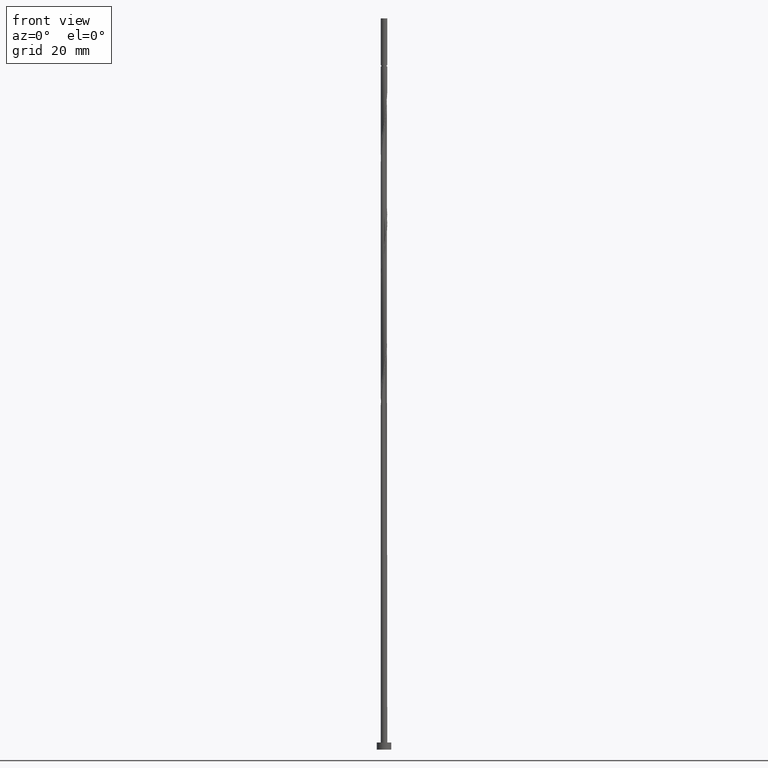
[diagram: clean part render]
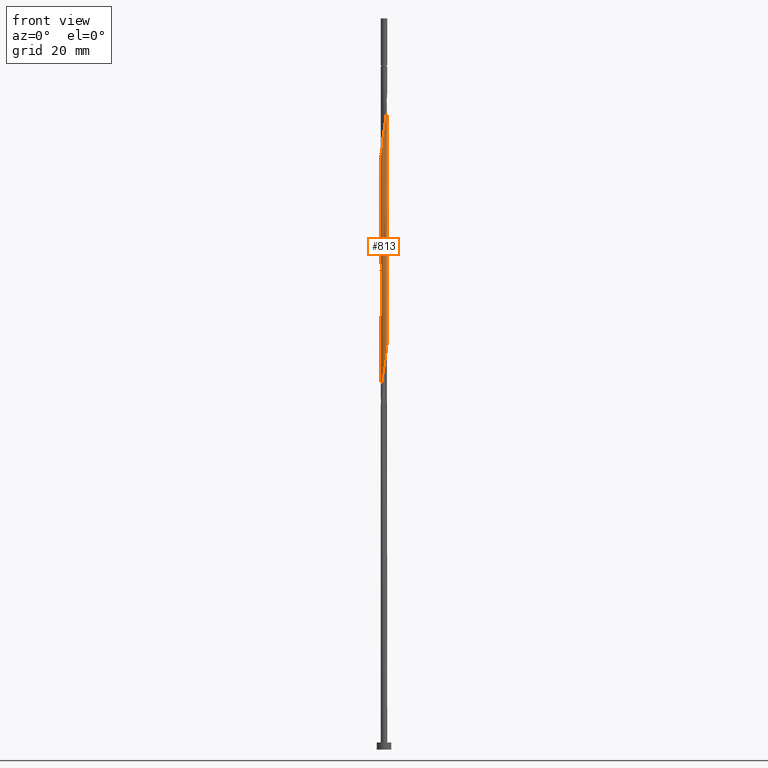
[diagram: same view with one face highlighted and labeled with its STEP entity id]
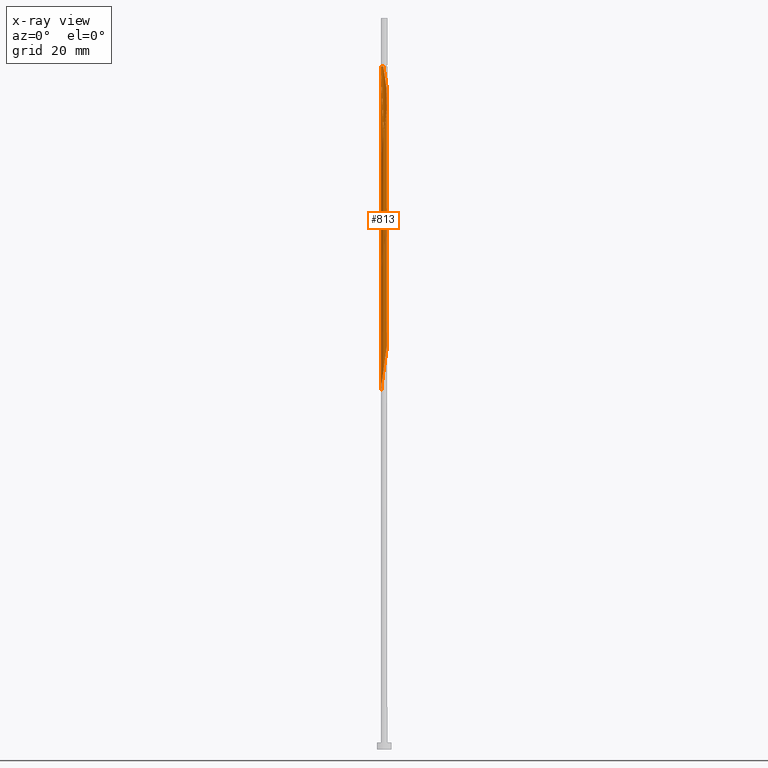
[diagram: x-ray of the same camera — body ghosted, the highlighted face saturated]
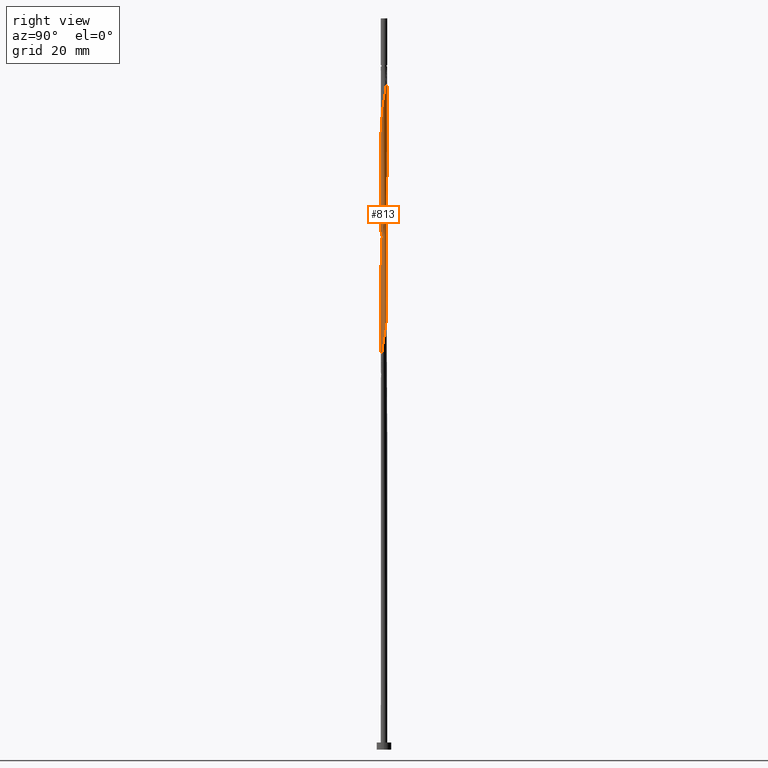
[diagram: same view with one face highlighted and labeled with its STEP entity id]
A machine part, front view. The second image highlights one B-rep face of the part: STEP entity #813.
The next image is the same camera in x-ray: the body ghosted, the highlighted face saturated — about 0% of this face is hidden behind the body in this view.
A second angle (right view) of the same face is appended — the face is thin or edge-on in the first view.
In plain terms, the highlighted cylindrical surface (bore or boss wall) has radius 0.55 mm, axis along (-0, -0, -1).
Its self-contained STEP definition (entity closure, byte-faithful):
#3 = CARTESIAN_POINT ( 'NONE',  ( -0.5464409452811958001, -0.06246833854196941899, 81.36855586856225386 ) ) ;
#9 = CARTESIAN_POINT ( 'NONE',  ( -0.5563349581191694426, 0.02407940474680335743, 80.84772253522896790 ) ) ;
#12 = CARTESIAN_POINT ( 'NONE',  ( 0.3717278763758661841, 0.4053620430246150375, 113.6602225352289679 ) ) ;
#14 = ORIENTED_EDGE ( 'NONE', *, *, #144, .T. ) ;
#16 = CARTESIAN_POINT ( 'NONE',  ( 0.1490160818307421919, -0.5365469324432223797, 66.26438920189562509 ) ) ;
#20 = EDGE_CURVE ( 'NONE', #357, #259, #975, .T. ) ;
#48 = CARTESIAN_POINT ( 'NONE',  ( -0.1094486180817280940, 0.5389999999999980362, 116.7852225352289111 ) ) ;
#54 = CARTESIAN_POINT ( 'NONE',  ( 0.5500000000000010436, -0.05527707983925730234, 91.07405373462472653 ) ) ;
#68 = CARTESIAN_POINT ( 'NONE',  ( -0.5500000000000008216, -0.03133555559553766884, 60.34786939923979787 ) ) ;
#76 = EDGE_LOOP ( 'NONE', ( #155, #396, #227, #14, #501, #451, #1160, #553 ) ) ;
#77 = EDGE_CURVE ( 'NONE', #357, #253, #307, .T. ) ;
#93 = CARTESIAN_POINT ( 'NONE',  ( 0.5500000000000000444, 6.735557395310442516E-17, 125.0000000000000000 ) ) ;
#101 = CARTESIAN_POINT ( 'NONE',  ( -0.5500000000000008216, 3.260999855347195201E-16, 100.4954200937586677 ) ) ;
#104 = CARTESIAN_POINT ( 'NONE',  ( 0.3075248360626017807, -0.4642379546774351162, 67.30605586856228228 ) ) ;
#106 = CARTESIAN_POINT ( 'NONE',  ( 0.5464409452811958001, 0.06246833854196934266, 70.95188920189558246 ) ) ;
#116 = CARTESIAN_POINT ( 'NONE',  ( -0.5216650418808324030, 0.1948178314166537639, 79.80605586856226807 ) ) ;
#118 = CARTESIAN_POINT ( 'NONE',  ( 0.5216650418808322920, 0.1948178314166536251, 112.0977225352289395 ) ) ;
#144 = EDGE_CURVE ( 'NONE', #1031, #1375, #953, .T. ) ;
#155 = ORIENTED_EDGE ( 'NONE', *, *, #77, .F. ) ;
#187 = CARTESIAN_POINT ( 'NONE',  ( -0.5500000000000008216, 3.260999855347195201E-16, 100.4954200937586677 ) ) ;
#193 = CARTESIAN_POINT ( 'NONE',  ( -0.1490160818307422474, -0.5365469324432222686, 104.8060558685622681 ) ) ;
#200 = CARTESIAN_POINT ( 'NONE',  ( -0.3717278763758661286, -0.4053620430246150930, 103.2435558685622823 ) ) ;
#208 = CARTESIAN_POINT ( 'NONE',  ( 0.4053620430246150930, -0.3717278763758661286, 108.4518892018956251 ) ) ;
#217 = CARTESIAN_POINT ( 'NONE',  ( -0.4642379546774351162, -0.3075248360626017807, 82.93105586856229650 ) ) ;
#219 = CARTESIAN_POINT ( 'NONE',  ( 0.4359309166891303655, 0.3464861313717949587, 113.1393892018956109 ) ) ;
#224 = CARTESIAN_POINT ( 'NONE',  ( 0.4053620430246151485, 0.3717278763758660731, 73.03522253522893948 ) ) ;
#227 = ORIENTED_EDGE ( 'NONE', *, *, #1104, .F. ) ;
#232 = CARTESIAN_POINT ( 'NONE',  ( 0.02407940474680333315, 0.5563349581191694426, 75.63938920189563930 ) ) ;
#253 = VERTEX_POINT ( 'NONE', #1369 ) ;
#259 = VERTEX_POINT ( 'NONE', #48 ) ;
#265 = AXIS2_PLACEMENT_3D ( 'NONE', #991, #1193, #749 ) ;
#269 =( BOUNDED_CURVE ( )  B_SPLINE_CURVE ( 2, ( #536, #984, #873, #511, #745, #899, #1002, #1011, #1129, #352, #1421, #1205, #290, #730, #624, #1067, #410, #740, #1074, #859, #962, #636, #682 ),
 .UNSPECIFIED., .F., .T. ) 
 B_SPLINE_CURVE_WITH_KNOTS ( ( 3, 2, 2, 2, 2, 2, 2, 2, 2, 2, 2, 3 ),
 ( 0.4295322023138551382, 0.4375000000000000000, 0.4500000000000000111, 0.4625000000000000222, 0.4749999999999999778, 0.4874999999999999889, 0.5000000000000000000, 0.5124999999999999556, 0.5250000000000000222, 0.5374999999999999778, 0.5500000000000000444, 0.5545322023138552492 ),
 .UNSPECIFIED. ) 
 CURVE ( )  GEOMETRIC_REPRESENTATION_ITEM ( )  RATIONAL_B_SPLINE_CURVE ( ( 0.9039174447099540544, 0.9019565955404832414, 0.9090909090909319312, 0.8978984914501476622, 0.9090909090909319312, 0.8978984914501476622, 0.9090909090909319312, 0.8978984914501476622, 0.9090909090909319312, 0.8978984914501476622, 0.9090909090909319312, 0.8978984914501476622, 0.9090909090909319312, 0.8978984914501476622, 0.9090909090909319312, 0.8978984914501476622, 0.9090909090909319312, 0.8978984914501476622, 0.9090909090909319312, 0.8978984914501476622, 0.9090909090909319312, 0.9050328050005962410, 0.9039174447099540544 ) ) 
 REPRESENTATION_ITEM ( '' )  );
#275 = AXIS2_PLACEMENT_3D ( 'NONE', #1319, #1302, #1095 ) ;
#286 = DIRECTION ( 'NONE',  ( -0.000000000000000000, -0.000000000000000000, -1.000000000000000000 ) ) ;
#289 = CARTESIAN_POINT ( 'NONE',  ( -0.4053620430246150375, -0.3717278763758660731, 62.61855586856226807 ) ) ;
#290 = CARTESIAN_POINT ( 'NONE',  ( 0.1094486180817286491, 0.5390000000000009228, 95.95188920189559667 ) ) ;
#295 = CARTESIAN_POINT ( 'NONE',  ( -0.5365469324432223797, -0.1490160818307422752, 61.05605586856228228 ) ) ;
#301 = FACE_OUTER_BOUND ( 'NONE', #76, .T. ) ;
#307 = LINE ( 'NONE', #534, #1098 ) ;
#314 = CARTESIAN_POINT ( 'NONE',  ( -0.3075248360626017252, -0.4642379546774349497, 103.7643892018956251 ) ) ;
#321 = CARTESIAN_POINT ( 'NONE',  ( -0.4787979792849813565, -0.2706519813942244168, 102.2018892018956251 ) ) ;
#328 = CARTESIAN_POINT ( 'NONE',  ( 0.2706519813942245278, 0.4787979792849813010, 74.07688920189561088 ) ) ;
#330 = CARTESIAN_POINT ( 'NONE',  ( 0.4787979792849813565, 0.2706519813942243613, 112.6185558685622681 ) ) ;
#341 = CARTESIAN_POINT ( 'NONE',  ( 0.5216650418808322920, -0.1948178314166537917, 69.38938920189561088 ) ) ;
#345 = CARTESIAN_POINT ( 'NONE',  ( -0.1094486180817285798, -0.5390000000000009228, 64.70188920189559667 ) ) ;
#347 = CARTESIAN_POINT ( 'NONE',  ( -0.1490160818307422752, 0.5365469324432223797, 76.68105586856228228 ) ) ;
#352 = CARTESIAN_POINT ( 'NONE',  ( -0.1490160818307422752, 0.5365469324432223797, 97.51438920189561088 ) ) ;
#357 = VERTEX_POINT ( 'NONE', #700 ) ;
#396 = ORIENTED_EDGE ( 'NONE', *, *, #20, .T. ) ;
#404 =( BOUNDED_CURVE ( )  B_SPLINE_CURVE ( 2, ( #510, #54, #1405, #428, #657, #531, #867, #1317, #1108, #549, #995, #1448, #1347, #564, #671, #665, #1244, #217, #678, #1123, #3, #9, #455, #116, #1131, #1013, #900, #1117, #557, #347, #788, #232, #1330, #881, #328, #776, #224, #1005, #1339, #1228, #106, #445, #891, #341, #783, #1238, #1010, #104, #1360, #16, #584, #555, #345, #1001, #795, #1454, #289, #766, #1419, #295, #759, #68, #1188 ),
 .UNSPECIFIED., .F., .T. ) 
 B_SPLINE_CURVE_WITH_KNOTS ( ( 3, 2, 2, 2, 2, 2, 2, 2, 2, 2, 2, 2, 2, 2, 2, 2, 2, 2, 2, 2, 2, 2, 2, 2, 2, 2, 2, 2, 2, 2, 2, 3 ),
 ( 0.5545322023138552492, 0.5625000000000000000, 0.5749999999999999556, 0.5875000000000000222, 0.5999999999999999778, 0.6125000000000000444, 0.6250000000000000000, 0.6374999999999999556, 0.6500000000000000222, 0.6624999999999999778, 0.6750000000000000444, 0.6875000000000000000, 0.6999999999999999556, 0.7125000000000000222, 0.7249999999999999778, 0.7375000000000000444, 0.7500000000000000000, 0.7624999999999999556, 0.7750000000000000222, 0.7874999999999999778, 0.8000000000000000444, 0.8125000000000000000, 0.8249999999999999556, 0.8375000000000000222, 0.8499999999999999778, 0.8625000000000000444, 0.8750000000000000000, 0.8874999999999999556, 0.8999999999999999112, 0.9125000000000000888, 0.9250000000000000444, 0.9295322023138552492 ),
 .UNSPECIFIED. ) 
 CURVE ( )  GEOMETRIC_REPRESENTATION_ITEM ( )  RATIONAL_B_SPLINE_CURVE ( ( 0.9039174447099540544, 0.9019565955404833524, 0.9090909090909319312, 0.8978984914501476622, 0.9090909090909319312, 0.8978984914501476622, 0.9090909090909319312, 0.8978984914501476622, 0.9090909090909319312, 0.8978984914501476622, 0.9090909090909319312, 0.8978984914501476622, 0.9090909090909319312, 0.8978984914501476622, 0.9090909090909319312, 0.8978984914501476622, 0.9090909090909319312, 0.8978984914501476622, 0.9090909090909319312, 0.8978984914501476622, 0.9090909090909319312, 0.8978984914501476622, 0.9090909090909319312, 0.8978984914501476622, 0.9090909090909319312, 0.8978984914501476622, 0.9090909090909319312, 0.8978984914501476622, 0.9090909090909319312, 0.8978984914501476622, 0.9090909090909319312, 0.8978984914501476622, 0.9090909090909319312, 0.8978984914501476622, 0.9090909090909319312, 0.8978984914501476622, 0.9090909090909319312, 0.8978984914501476622, 0.9090909090909319312, 0.8978984914501476622, 0.9090909090909319312, 0.8978984914501476622, 0.9090909090909319312, 0.8978984914501476622, 0.9090909090909319312, 0.8978984914501476622, 0.9090909090909319312, 0.8978984914501476622, 0.9090909090909319312, 0.8978984914501476622, 0.9090909090909319312, 0.8978984914501476622, 0.9090909090909319312, 0.8978984914501476622, 0.9090909090909319312, 0.8978984914501476622, 0.9090909090909319312, 0.8978984914501476622, 0.9090909090909319312, 0.8978984914501476622, 0.9090909090909319312, 0.9050328050005962410, 0.9039174447099540544 ) ) 
 REPRESENTATION_ITEM ( '' )  );
#410 = CARTESIAN_POINT ( 'NONE',  ( 0.4053620430246151485, 0.3717278763758660731, 93.86855586856226807 ) ) ;
#428 = CARTESIAN_POINT ( 'NONE',  ( 0.5216650418808322920, -0.1948178314166537917, 90.22272253522891106 ) ) ;
#430 = CARTESIAN_POINT ( 'NONE',  ( 0.5365469324432222686, -0.1490160818307423030, 110.0143892018956251 ) ) ;
#440 = CARTESIAN_POINT ( 'NONE',  ( 0.02407940474680323947, -0.5563349581191692206, 105.8477225352289395 ) ) ;
#445 = CARTESIAN_POINT ( 'NONE',  ( 0.5563349581191694426, -0.02407940474680343723, 70.43105586856226807 ) ) ;
#451 = ORIENTED_EDGE ( 'NONE', *, *, #690, .F. ) ;
#455 = CARTESIAN_POINT ( 'NONE',  ( -0.5390000000000009228, 0.1094486180817285242, 80.32688920189558246 ) ) ;
#464 = VECTOR ( 'NONE', #286, 1000.000000000000000 ) ;
#501 = ORIENTED_EDGE ( 'NONE', *, *, #664, .F. ) ;
#510 = CARTESIAN_POINT ( 'NONE',  ( 0.5500000000000008216, 6.971792794190551721E-16, 91.40835831003256828 ) ) ;
#511 = CARTESIAN_POINT ( 'NONE',  ( -0.5216650418808324030, 0.1948178314166537639, 100.6393892018956109 ) ) ;
#512 =( BOUNDED_CURVE ( )  B_SPLINE_CURVE ( 2, ( #101, #542, #566, #1094, #321, #551, #200, #314, #785, #193, #1231, #440, #980, #883, #989, #1240, #208, #673, #1332, #430, #1342, #1349, #1212, #118, #330, #219, #12, #1325, #644, #771, #1202, #666, #1433 ),
 .UNSPECIFIED., .F., .T. ) 
 B_SPLINE_CURVE_WITH_KNOTS ( ( 3, 2, 2, 2, 2, 2, 2, 2, 2, 2, 2, 2, 2, 2, 2, 2, 3 ),
 ( 0.5545322023138550271, 0.5625000000000000000, 0.5749999999999999556, 0.5875000000000001332, 0.6000000000000000888, 0.6125000000000001554, 0.6250000000000001110, 0.6375000000000000666, 0.6500000000000001332, 0.6625000000000001998, 0.6750000000000002665, 0.6875000000000002220, 0.7000000000000001776, 0.7125000000000003553, 0.7250000000000003109, 0.7375000000000003775, 0.7500000000000003331 ),
 .UNSPECIFIED. ) 
 CURVE ( )  GEOMETRIC_REPRESENTATION_ITEM ( )  RATIONAL_B_SPLINE_CURVE ( ( 0.9039174447099536103, 0.9019565955404825752, 0.9090909090909312651, 0.8978984914501472181, 0.9090909090909312651, 0.8978984914501472181, 0.9090909090909312651, 0.8978984914501472181, 0.9090909090909312651, 0.8978984914501472181, 0.9090909090909312651, 0.8978984914501472181, 0.9090909090909312651, 0.8978984914501472181, 0.9090909090909312651, 0.8978984914501472181, 0.9090909090909312651, 0.8978984914501472181, 0.9090909090909312651, 0.8978984914501472181, 0.9090909090909312651, 0.8978984914501472181, 0.9090909090909312651, 0.8978984914501472181, 0.9090909090909312651, 0.8978984914501472181, 0.9090909090909312651, 0.8978984914501472181, 0.9090909090909312651, 0.8978984914501472181, 0.9090909090909312651, 0.8978984914501468850, 0.9090909090909315982 ) ) 
 REPRESENTATION_ITEM ( '' )  );
#526 = DIRECTION ( 'NONE',  ( -0.000000000000000000, -0.000000000000000000, -1.000000000000000000 ) ) ;
#531 = CARTESIAN_POINT ( 'NONE',  ( 0.4359309166891303100, -0.3464861313717951807, 89.18105586856226807 ) ) ;
#534 = CARTESIAN_POINT ( 'NONE',  ( -0.5500000000000000444, 0.000000000000000000, 125.0000000000000000 ) ) ;
#536 = CARTESIAN_POINT ( 'NONE',  ( -0.5500000000000009326, -2.811206771851028951E-16, 101.8250249766992255 ) ) ;
#540 = CARTESIAN_POINT ( 'NONE',  ( 0.5500000000000000444, 6.735557395310442516E-17, 116.7852225352289395 ) ) ;
#542 = CARTESIAN_POINT ( 'NONE',  ( -0.5500000000000008216, -0.05527707983925565088, 100.8297246691665094 ) ) ;
#549 = CARTESIAN_POINT ( 'NONE',  ( 0.1490160818307421919, -0.5365469324432223797, 87.09772253522892527 ) ) ;
#551 = CARTESIAN_POINT ( 'NONE',  ( -0.4359309166891302545, -0.3464861313717949587, 102.7227225352289679 ) ) ;
#553 = ORIENTED_EDGE ( 'NONE', *, *, #1335, .F. ) ;
#555 = CARTESIAN_POINT ( 'NONE',  ( -0.02407940474680341295, -0.5563349581191694426, 65.22272253522893948 ) ) ;
#557 = CARTESIAN_POINT ( 'NONE',  ( -0.2282704589466720557, 0.5003924435603286369, 77.20188920189559667 ) ) ;
#564 = CARTESIAN_POINT ( 'NONE',  ( -0.1948178314166537639, -0.5216650418808322920, 85.01438920189563930 ) ) ;
#566 = CARTESIAN_POINT ( 'NONE',  ( -0.5390000000000009228, -0.1094486180817284965, 101.1602225352289679 ) ) ;
#584 = CARTESIAN_POINT ( 'NONE',  ( 0.06246833854196937041, -0.5464409452811958001, 65.74355586856226807 ) ) ;
#611 = CARTESIAN_POINT ( 'NONE',  ( 0.5500000000000008216, 6.971792794190551721E-16, 91.40835831003256828 ) ) ;
#624 = CARTESIAN_POINT ( 'NONE',  ( 0.2706519813942245278, 0.4787979792849813010, 94.91022253522892527 ) ) ;
#636 = CARTESIAN_POINT ( 'NONE',  ( 0.5500000000000008216, 0.03133555559553759945, 91.59786939923982629 ) ) ;
#644 = CARTESIAN_POINT ( 'NONE',  ( 0.2282704589466721390, 0.5003924435603287479, 114.7018892018956251 ) ) ;
#657 = CARTESIAN_POINT ( 'NONE',  ( 0.4787979792849813010, -0.2706519813942245278, 89.70188920189559667 ) ) ;
#662 = VERTEX_POINT ( 'NONE', #540 ) ;
#664 = EDGE_CURVE ( 'NONE', #728, #1375, #404, .T. ) ;
#665 = CARTESIAN_POINT ( 'NONE',  ( -0.3464861313717951807, -0.4359309166891303100, 83.97272253522892527 ) ) ;
#666 = CARTESIAN_POINT ( 'NONE',  ( -0.02407940474680551543, 0.5563349581191694426, 116.2643892018956109 ) ) ;
#671 = CARTESIAN_POINT ( 'NONE',  ( -0.2706519813942244723, -0.4787979792849813010, 84.49355586856228228 ) ) ;
#673 = CARTESIAN_POINT ( 'NONE',  ( 0.4642379546774349497, -0.3075248360626018918, 108.9727225352289537 ) ) ;
#678 = CARTESIAN_POINT ( 'NONE',  ( -0.5003924435603286369, -0.2282704589466720002, 82.41022253522895369 ) ) ;
#682 = CARTESIAN_POINT ( 'NONE',  ( 0.5500000000000008216, 6.971792794190551721E-16, 91.40835831003256828 ) ) ;
#690 = EDGE_CURVE ( 'NONE', #662, #728, #1204, .T. ) ;
#700 = CARTESIAN_POINT ( 'NONE',  ( -0.5499999999999978240, 0.000000000000000000, 116.7852225352289395 ) ) ;
#728 = VERTEX_POINT ( 'NONE', #611 ) ;
#730 = CARTESIAN_POINT ( 'NONE',  ( 0.1948178314166538194, 0.5216650418808322920, 95.43105586856226807 ) ) ;
#740 = CARTESIAN_POINT ( 'NONE',  ( 0.4642379546774351162, 0.3075248360626016697, 93.34772253522895369 ) ) ;
#745 = CARTESIAN_POINT ( 'NONE',  ( -0.4787979792849813010, 0.2706519813942244168, 100.1185558685622965 ) ) ;
#749 = DIRECTION ( 'NONE',  ( -1.000000000000000000, 0.000000000000000000, 0.000000000000000000 ) ) ;
#759 = CARTESIAN_POINT ( 'NONE',  ( -0.5464409452811958001, -0.06246833854196941899, 60.53522253522893237 ) ) ;
#766 = CARTESIAN_POINT ( 'NONE',  ( -0.4642379546774351162, -0.3075248360626017807, 62.09772253522895369 ) ) ;
#771 = CARTESIAN_POINT ( 'NONE',  ( 0.1490160818307423030, 0.5365469324432222686, 115.2227225352289395 ) ) ;
#776 = CARTESIAN_POINT ( 'NONE',  ( 0.3464861313717951807, 0.4359309166891301990, 73.55605586856226807 ) ) ;
#783 = CARTESIAN_POINT ( 'NONE',  ( 0.4787979792849813010, -0.2706519813942245278, 68.86855586856226807 ) ) ;
#785 = CARTESIAN_POINT ( 'NONE',  ( -0.2282704589466720835, -0.5003924435603287479, 104.2852225352289679 ) ) ;
#788 = CARTESIAN_POINT ( 'NONE',  ( -0.06246833854196943980, 0.5464409452811958001, 76.16022253522893948 ) ) ;
#795 = CARTESIAN_POINT ( 'NONE',  ( -0.2706519813942244723, -0.4787979792849813010, 63.66022253522893237 ) ) ;
#813 = ADVANCED_FACE ( 'NONE', ( #301 ), #1420, .T. ) ;
#859 = CARTESIAN_POINT ( 'NONE',  ( 0.5365469324432224907, 0.1490160818307421642, 92.30605586856229650 ) ) ;
#867 = CARTESIAN_POINT ( 'NONE',  ( 0.3717278763758660731, -0.4053620430246150375, 88.66022253522892527 ) ) ;
#873 = CARTESIAN_POINT ( 'NONE',  ( -0.5390000000000009228, 0.1094486180817285242, 101.1602225352289537 ) ) ;
#881 = CARTESIAN_POINT ( 'NONE',  ( 0.1948178314166538194, 0.5216650418808322920, 74.59772253522896790 ) ) ;
#883 = CARTESIAN_POINT ( 'NONE',  ( 0.1948178314166536251, -0.5216650418808322920, 106.8893892018955825 ) ) ;
#891 = CARTESIAN_POINT ( 'NONE',  ( 0.5390000000000009228, -0.1094486180817286075, 69.91022253522892527 ) ) ;
#899 = CARTESIAN_POINT ( 'NONE',  ( -0.4359309166891303100, 0.3464861313717951807, 99.59772253522895369 ) ) ;
#900 = CARTESIAN_POINT ( 'NONE',  ( -0.3717278763758661286, 0.4053620430246150375, 78.24355586856225386 ) ) ;
#953 = LINE ( 'NONE', #1404, #464 ) ;
#962 = CARTESIAN_POINT ( 'NONE',  ( 0.5464409452811958001, 0.06246833854196934266, 91.78522253522893948 ) ) ;
#975 = CIRCLE ( 'NONE', #275, 0.5499999999999978240 ) ;
#980 = CARTESIAN_POINT ( 'NONE',  ( 0.1094486180817284549, -0.5390000000000009228, 106.3685558685622823 ) ) ;
#981 = DIRECTION ( 'NONE',  ( -0.000000000000000000, -0.000000000000000000, -1.000000000000000000 ) ) ;
#984 = CARTESIAN_POINT ( 'NONE',  ( -0.5500000000000011546, 0.05527707983925669866, 101.4907204012913837 ) ) ;
#989 = CARTESIAN_POINT ( 'NONE',  ( 0.2706519813942244168, -0.4787979792849813565, 107.4102225352289679 ) ) ;
#991 = CARTESIAN_POINT ( 'NONE',  ( 0.000000000000000000, 0.000000000000000000, 125.0000000000000000 ) ) ;
#995 = CARTESIAN_POINT ( 'NONE',  ( 0.06246833854196937041, -0.5464409452811958001, 86.57688920189559667 ) ) ;
#1001 = CARTESIAN_POINT ( 'NONE',  ( -0.1948178314166537639, -0.5216650418808322920, 64.18105586856228228 ) ) ;
#1002 = CARTESIAN_POINT ( 'NONE',  ( -0.3717278763758661286, 0.4053620430246150375, 99.07688920189558246 ) ) ;
#1005 = CARTESIAN_POINT ( 'NONE',  ( 0.4642379546774351162, 0.3075248360626016697, 72.51438920189559667 ) ) ;
#1010 = CARTESIAN_POINT ( 'NONE',  ( 0.3717278763758660731, -0.4053620430246150375, 67.82688920189561088 ) ) ;
#1011 = CARTESIAN_POINT ( 'NONE',  ( -0.3075248360626018918, 0.4642379546774351162, 98.55605586856226807 ) ) ;
#1013 = CARTESIAN_POINT ( 'NONE',  ( -0.4359309166891303100, 0.3464861313717951807, 78.76438920189559667 ) ) ;
#1031 = VERTEX_POINT ( 'NONE', #187 ) ;
#1067 = CARTESIAN_POINT ( 'NONE',  ( 0.3464861313717951807, 0.4359309166891301990, 94.38938920189561088 ) ) ;
#1074 = CARTESIAN_POINT ( 'NONE',  ( 0.5003924435603287479, 0.2282704589466718337, 92.82688920189562509 ) ) ;
#1094 = CARTESIAN_POINT ( 'NONE',  ( -0.5216650418808322920, -0.1948178314166536251, 101.6810558685622539 ) ) ;
#1095 = DIRECTION ( 'NONE',  ( -1.000000000000000000, 0.000000000000000000, 0.000000000000000000 ) ) ;
#1098 = VECTOR ( 'NONE', #981, 1000.000000000000000 ) ;
#1104 = EDGE_CURVE ( 'NONE', #1031, #259, #512, .T. ) ;
#1108 = CARTESIAN_POINT ( 'NONE',  ( 0.2282704589466720002, -0.5003924435603286369, 87.61855586856226807 ) ) ;
#1117 = CARTESIAN_POINT ( 'NONE',  ( -0.3075248360626018918, 0.4642379546774351162, 77.72272253522892527 ) ) ;
#1123 = CARTESIAN_POINT ( 'NONE',  ( -0.5365469324432223797, -0.1490160818307422752, 81.88938920189561088 ) ) ;
#1129 = CARTESIAN_POINT ( 'NONE',  ( -0.2282704589466720557, 0.5003924435603286369, 98.03522253522892527 ) ) ;
#1131 = CARTESIAN_POINT ( 'NONE',  ( -0.4787979792849813010, 0.2706519813942244168, 79.28522253522892527 ) ) ;
#1159 = CARTESIAN_POINT ( 'NONE',  ( -0.5500000000000008216, -7.683965176392812402E-16, 60.15835831003253986 ) ) ;
#1160 = ORIENTED_EDGE ( 'NONE', *, *, #690, .T. ) ;
#1188 = CARTESIAN_POINT ( 'NONE',  ( -0.5500000000000008216, -7.683965176392812402E-16, 60.15835831003253986 ) ) ;
#1193 = DIRECTION ( 'NONE',  ( -0.000000000000000000, -0.000000000000000000, -1.000000000000000000 ) ) ;
#1202 = CARTESIAN_POINT ( 'NONE',  ( 0.06246833854196959246, 0.5464409452811960222, 115.7435558685622681 ) ) ;
#1204 = LINE ( 'NONE', #93, #1254 ) ;
#1205 = CARTESIAN_POINT ( 'NONE',  ( 0.02407940474680333315, 0.5563349581191694426, 96.47272253522896790 ) ) ;
#1212 = CARTESIAN_POINT ( 'NONE',  ( 0.5390000000000009228, 0.1094486180817284271, 111.5768892018956251 ) ) ;
#1228 = CARTESIAN_POINT ( 'NONE',  ( 0.5365469324432224907, 0.1490160818307421642, 71.47272253522895369 ) ) ;
#1231 = CARTESIAN_POINT ( 'NONE',  ( -0.06246833854196952307, -0.5464409452811960222, 105.3268892018956109 ) ) ;
#1238 = CARTESIAN_POINT ( 'NONE',  ( 0.4359309166891303100, -0.3464861313717951807, 68.34772253522893948 ) ) ;
#1240 = CARTESIAN_POINT ( 'NONE',  ( 0.3464861313717949032, -0.4359309166891302545, 107.9310558685622965 ) ) ;
#1244 = CARTESIAN_POINT ( 'NONE',  ( -0.4053620430246150375, -0.3717278763758660731, 83.45188920189559667 ) ) ;
#1254 = VECTOR ( 'NONE', #526, 1000.000000000000000 ) ;
#1302 = DIRECTION ( 'NONE',  ( -0.000000000000000000, -0.000000000000000000, -1.000000000000000000 ) ) ;
#1317 = CARTESIAN_POINT ( 'NONE',  ( 0.3075248360626017807, -0.4642379546774351162, 88.13938920189561088 ) ) ;
#1319 = CARTESIAN_POINT ( 'NONE',  ( 0.000000000000000000, 0.000000000000000000, 116.7852225352289395 ) ) ;
#1325 = CARTESIAN_POINT ( 'NONE',  ( 0.3075248360626018918, 0.4642379546774348942, 114.1810558685622823 ) ) ;
#1330 = CARTESIAN_POINT ( 'NONE',  ( 0.1094486180817286491, 0.5390000000000009228, 75.11855586856228228 ) ) ;
#1332 = CARTESIAN_POINT ( 'NONE',  ( 0.5003924435603287479, -0.2282704589466720835, 109.4935558685622965 ) ) ;
#1335 = EDGE_CURVE ( 'NONE', #253, #728, #269, .T. ) ;
#1339 = CARTESIAN_POINT ( 'NONE',  ( 0.5003924435603287479, 0.2282704589466718337, 71.99355586856225386 ) ) ;
#1342 = CARTESIAN_POINT ( 'NONE',  ( 0.5464409452811960222, -0.06246833854196955083, 110.5352225352289679 ) ) ;
#1347 = CARTESIAN_POINT ( 'NONE',  ( -0.1094486180817285798, -0.5390000000000009228, 85.53522253522893948 ) ) ;
#1349 = CARTESIAN_POINT ( 'NONE',  ( 0.5563349581191692206, 0.02407940474680321172, 111.0560558685622965 ) ) ;
#1360 = CARTESIAN_POINT ( 'NONE',  ( 0.2282704589466720002, -0.5003924435603286369, 66.78522253522893948 ) ) ;
#1369 = CARTESIAN_POINT ( 'NONE',  ( -0.5500000000000009326, -2.811206771851028951E-16, 101.8250249766992255 ) ) ;
#1375 = VERTEX_POINT ( 'NONE', #1159 ) ;
#1404 = CARTESIAN_POINT ( 'NONE',  ( -0.5500000000000000444, 0.000000000000000000, 125.0000000000000000 ) ) ;
#1405 = CARTESIAN_POINT ( 'NONE',  ( 0.5390000000000009228, -0.1094486180817286075, 90.74355586856229650 ) ) ;
#1419 = CARTESIAN_POINT ( 'NONE',  ( -0.5003924435603286369, -0.2282704589466720002, 61.57688920189561088 ) ) ;
#1420 = CYLINDRICAL_SURFACE ( 'NONE', #265, 0.5500000000000000444 ) ;
#1421 = CARTESIAN_POINT ( 'NONE',  ( -0.06246833854196943980, 0.5464409452811958001, 96.99355586856228228 ) ) ;
#1433 = CARTESIAN_POINT ( 'NONE',  ( -0.1094486180817280940, 0.5389999999999981473, 116.7852225352289111 ) ) ;
#1448 = CARTESIAN_POINT ( 'NONE',  ( -0.02407940474680341295, -0.5563349581191694426, 86.05605586856226807 ) ) ;
#1454 = CARTESIAN_POINT ( 'NONE',  ( -0.3464861313717951807, -0.4359309166891303100, 63.13938920189560378 ) ) ;